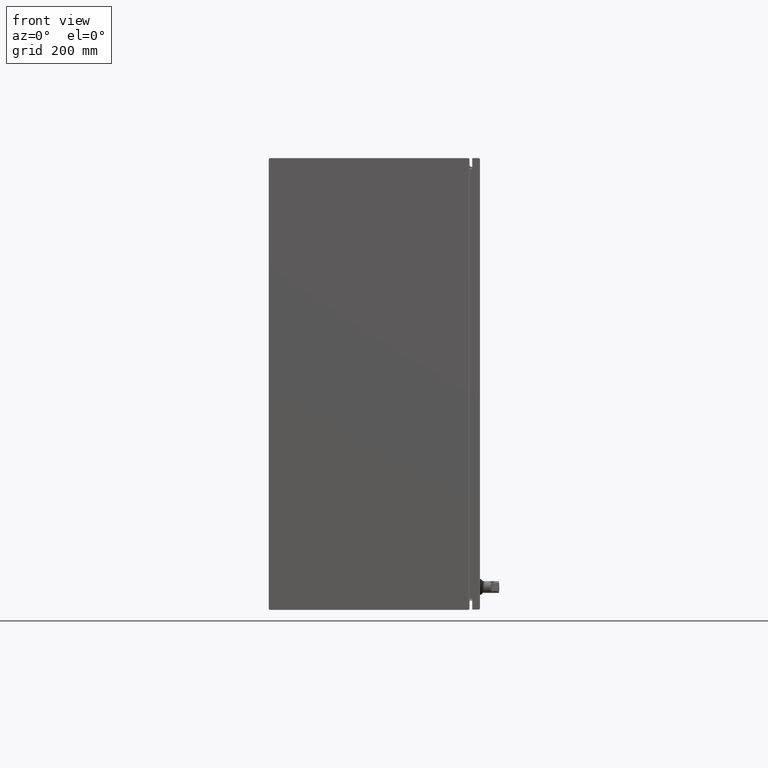
[diagram: clean part render]
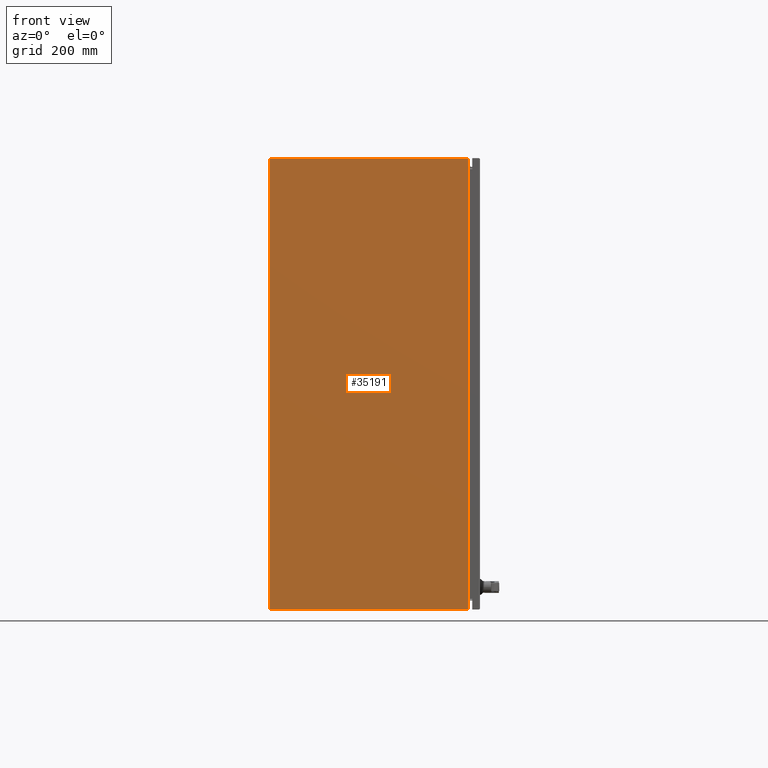
[diagram: same view with one face highlighted and labeled with its STEP entity id]
A machine part, front view. The second image highlights one B-rep face of the part: STEP entity #35191.
In plain terms, the highlighted planar face has unit normal (-0, -1, 0).
Its self-contained STEP definition (entity closure, byte-faithful):
#7801 = LINE ( 'NONE', #28870, #51126 ) ;
#9779 = ORIENTED_EDGE ( 'NONE', *, *, #82324, .T. ) ;
#12897 = CARTESIAN_POINT ( 'NONE',  ( 17.92800000000000793, -0.07200000000000185418, -21.00000000000007816 ) ) ;
#20829 = EDGE_CURVE ( 'NONE', #79410, #119274, #80886, .T. ) ;
#24430 = CARTESIAN_POINT ( 'NONE',  ( 121.8560000000000088, -0.07200000000000840450, -21.00000000000010658 ) ) ;
#28870 = CARTESIAN_POINT ( 'NONE',  ( -17.92800000000000082, -0.07199999999999967537, -21.00000000000007461 ) ) ;
#29773 = CARTESIAN_POINT ( 'NONE',  ( -17.92800000000000082, -0.07199999999999967537, -21.00000000000007461 ) ) ;
#30114 = EDGE_CURVE ( 'NONE', #91721, #79410, #55695, .T. ) ;
#35191 = ADVANCED_FACE ( 'NONE', ( #64407 ), #87831, .T. ) ;
#37536 = EDGE_LOOP ( 'NONE', ( #71867, #9779, #47487, #46063 ) ) ;
#41024 = DIRECTION ( 'NONE',  ( -2.286384672627659916E-16, 1.224646799147360110E-16, -1.000000000000000000 ) ) ;
#45536 = DIRECTION ( 'NONE',  ( -1.000000000000000000, 6.054351424682569716E-17, 2.286384672627659916E-16 ) ) ;
#46063 = ORIENTED_EDGE ( 'NONE', *, *, #30114, .T. ) ;
#47487 = ORIENTED_EDGE ( 'NONE', *, *, #76179, .T. ) ;
#48607 = DIRECTION ( 'NONE',  ( 1.000000000000000000, -6.054351424682569716E-17, -2.286384672627659916E-16 ) ) ;
#51126 = VECTOR ( 'NONE', #93495, 39.37007874015748143 ) ;
#55695 = LINE ( 'NONE', #102289, #107877 ) ;
#64407 = FACE_OUTER_BOUND ( 'NONE', #37536, .T. ) ;
#71822 = LINE ( 'NONE', #72656, #110774 ) ;
#71867 = ORIENTED_EDGE ( 'NONE', *, *, #20829, .T. ) ;
#72656 = CARTESIAN_POINT ( 'NONE',  ( 121.8560000000000088, -15.89200000000000657, -21.00000000000010658 ) ) ;
#76179 = EDGE_CURVE ( 'NONE', #87075, #91721, #7801, .T. ) ;
#79410 = VERTEX_POINT ( 'NONE', #113405 ) ;
#80886 = LINE ( 'NONE', #12897, #102511 ) ;
#82324 = EDGE_CURVE ( 'NONE', #119274, #87075, #71822, .T. ) ;
#87075 = VERTEX_POINT ( 'NONE', #98728 ) ;
#87831 = PLANE ( 'NONE',  #92641 ) ;
#91721 = VERTEX_POINT ( 'NONE', #29773 ) ;
#92641 = AXIS2_PLACEMENT_3D ( 'NONE', #24430, #41024, #106395 ) ;
#93495 = DIRECTION ( 'NONE',  ( 6.054351424682573414E-17, 1.000000000000000000, 1.224646799147359863E-16 ) ) ;
#98728 = CARTESIAN_POINT ( 'NONE',  ( -17.92799999999999372, -15.89199999999999768, -21.00000000000007461 ) ) ;
#102289 = CARTESIAN_POINT ( 'NONE',  ( 121.8560000000000088, -0.07200000000000840450, -21.00000000000010658 ) ) ;
#102511 = VECTOR ( 'NONE', #104582, 39.37007874015748143 ) ;
#104582 = DIRECTION ( 'NONE',  ( -6.054351424682573414E-17, -1.000000000000000000, -1.224646799147359863E-16 ) ) ;
#106395 = DIRECTION ( 'NONE',  ( -6.054351424682573414E-17, -1.000000000000000000, -1.224646799147359863E-16 ) ) ;
#107877 = VECTOR ( 'NONE', #48607, 39.37007874015748143 ) ;
#110774 = VECTOR ( 'NONE', #45536, 39.37007874015748143 ) ;
#113405 = CARTESIAN_POINT ( 'NONE',  ( 17.92800000000000793, -0.07200000000000185418, -21.00000000000007816 ) ) ;
#116637 = CARTESIAN_POINT ( 'NONE',  ( 17.92799999999998661, -15.89200000000000124, -21.00000000000008171 ) ) ;
#119274 = VERTEX_POINT ( 'NONE', #116637 ) ;